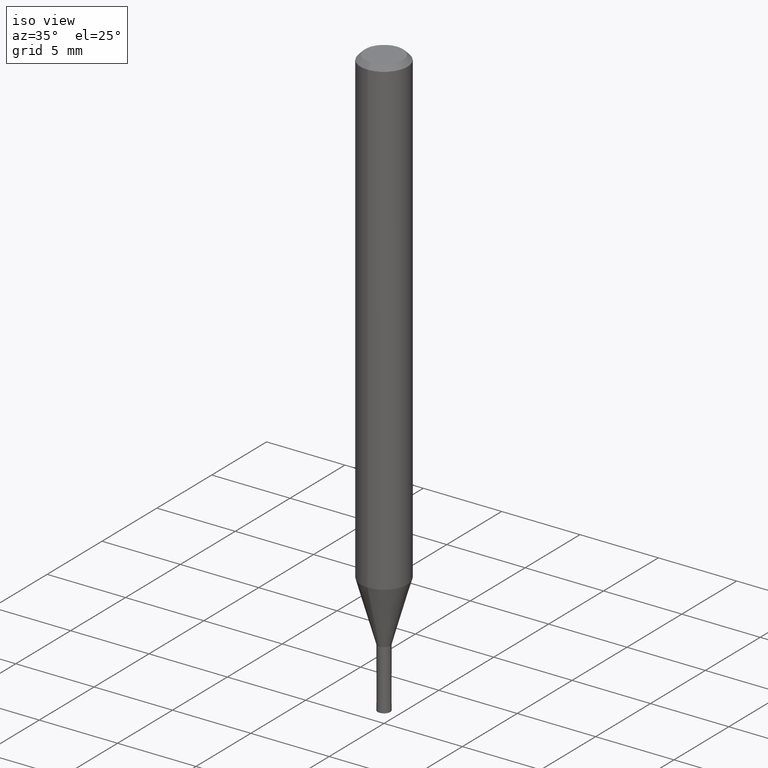
[diagram: clean part render]
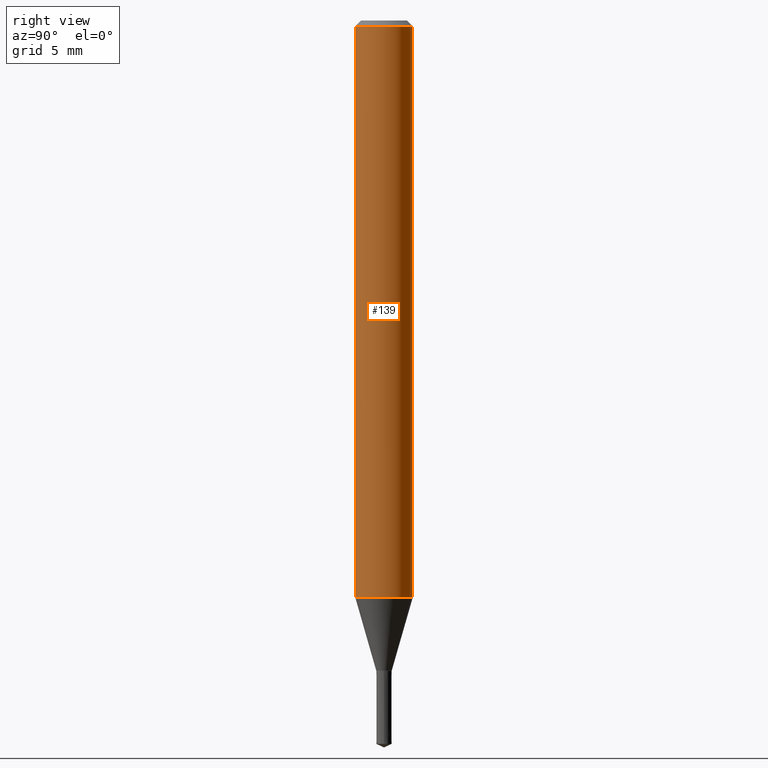
[diagram: tour spotlight — one face highlighted and labeled with its STEP entity id]
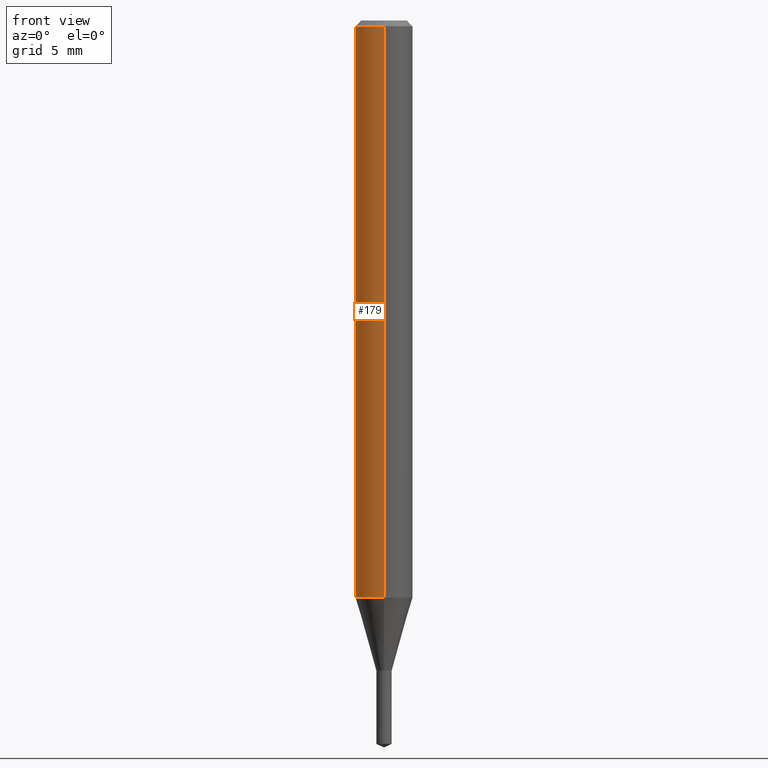
[diagram: tour spotlight — one face highlighted and labeled with its STEP entity id]
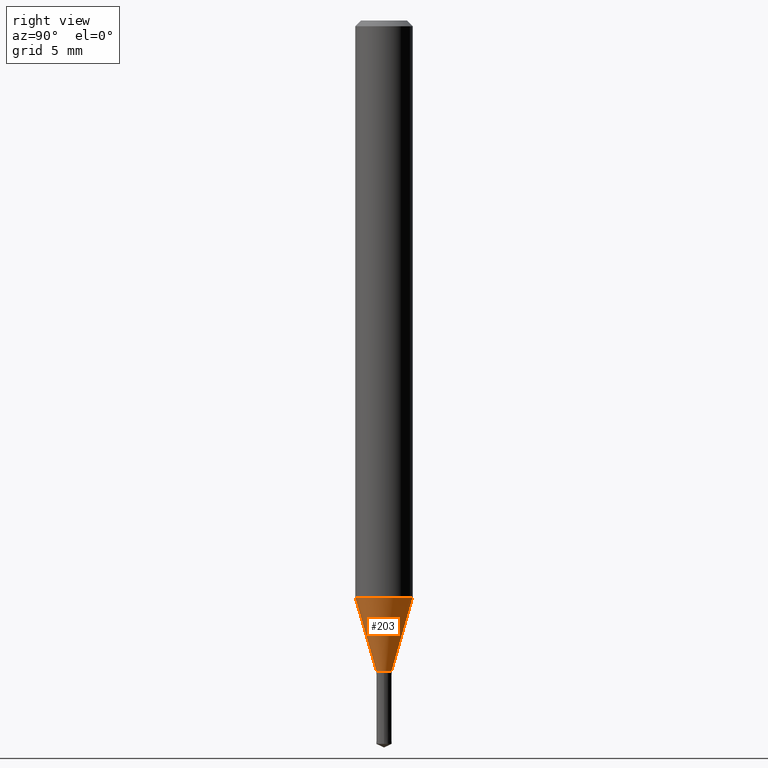
[diagram: tour spotlight — one face highlighted and labeled with its STEP entity id]
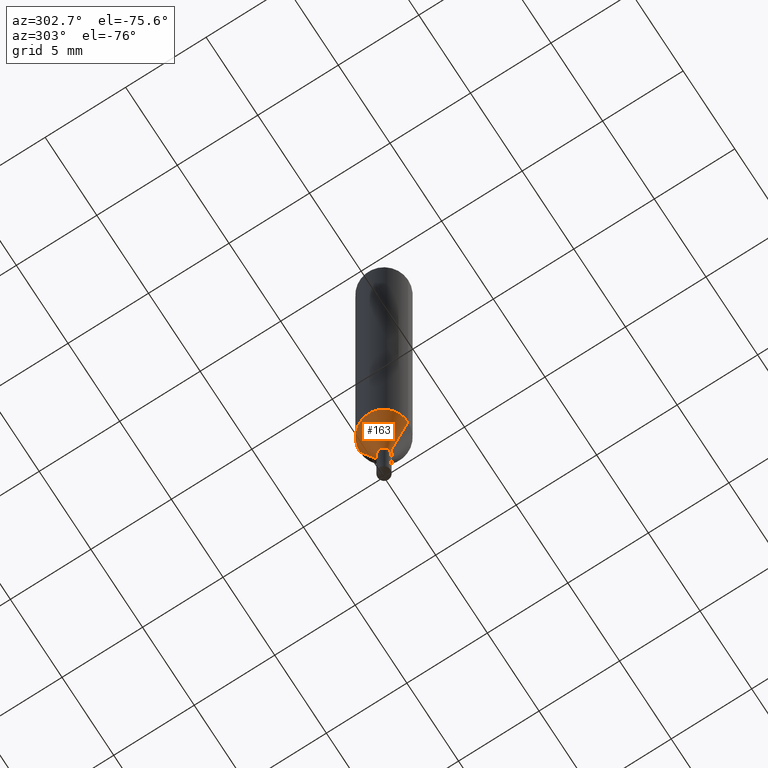
[diagram: tour spotlight — one face highlighted and labeled with its STEP entity id]
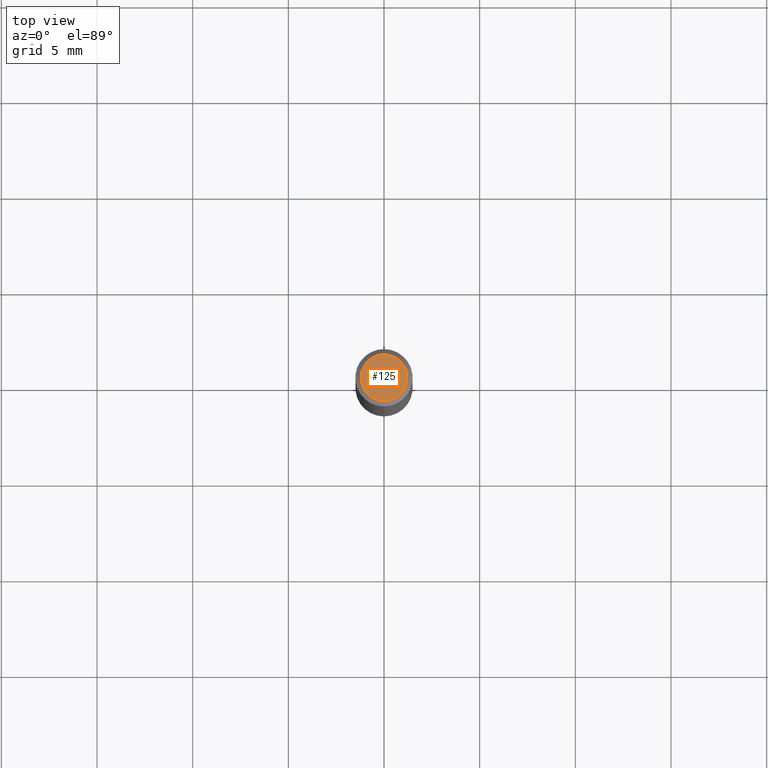
[diagram: tour spotlight — one face highlighted and labeled with its STEP entity id]
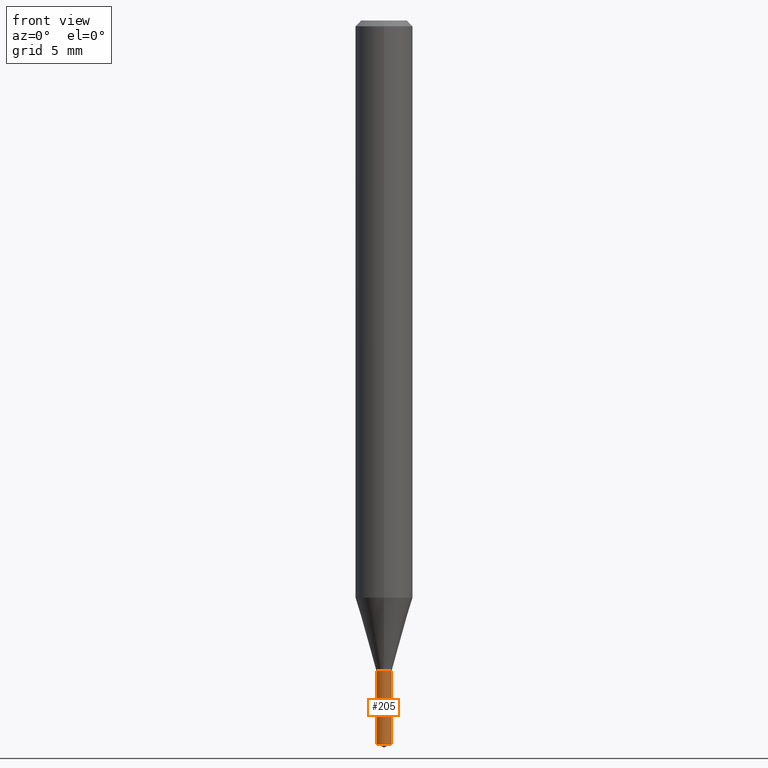
[diagram: tour spotlight — one face highlighted and labeled with its STEP entity id]
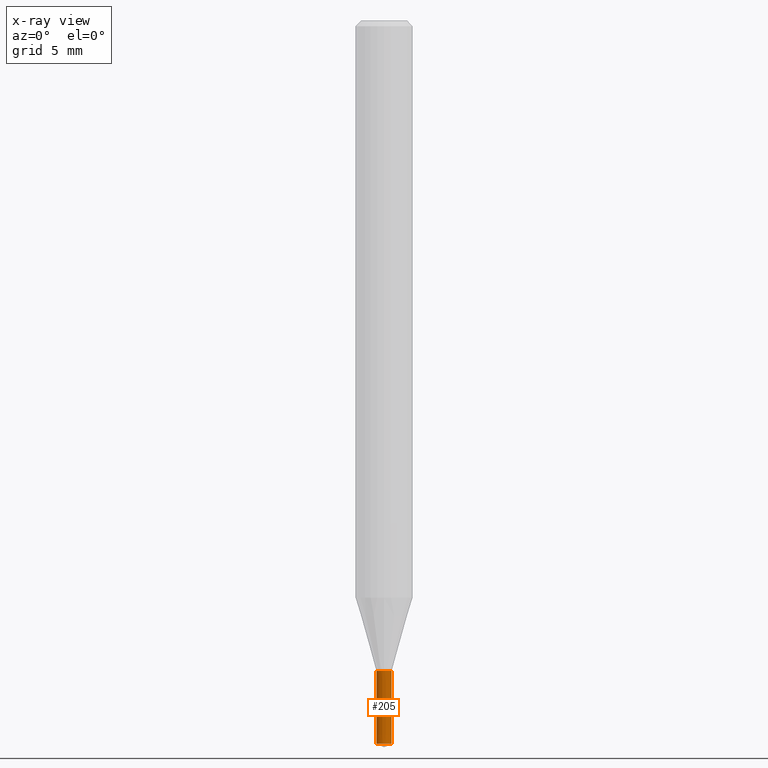
[diagram: x-ray of the same camera — body ghosted, this tour face saturated]
A machine part: a face-by-face anatomy tour. The part has 15 B-rep faces; the first image is the clean iso view, then the 6 largest visible faces are spotlighted one at a time (largest first), each with its STEP entity span.

Face 1 — right view, entity #139. In plain terms, the highlighted cylindrical surface (edge-blend (fillet) strip) has radius 1.5 mm, axis along (-0, -0, 1).
Definition (entity closure, byte-faithful):
#91=VERTEX_POINT('',#226);
#101=EDGE_CURVE('',#91,#127,#237,.T.);
#127=VERTEX_POINT('',#266);
#137=EDGE_CURVE('',#201,#91,#277,.T.);
#139=ADVANCED_FACE('',(#279),#280,.T.);
#157=EDGE_CURVE('',#167,#201,#299,.T.);
#167=VERTEX_POINT('',#311);
#199=EDGE_CURVE('',#167,#127,#347,.T.);
#201=VERTEX_POINT('',#349);
#226=CARTESIAN_POINT('',(1.83690953073357E-016,-1.5,-30.164));
#237=LINE('',#382,#383);
#266=CARTESIAN_POINT('',(1.83690953073357E-016,-1.5,-0.300000000000001));
#277=CIRCLE('',#436,1.5);
#279=FACE_OUTER_BOUND('',#438,.T.);
#280=CYLINDRICAL_SURFACE('',#439,1.5);
#299=LINE('',#464,#465);
#311=CARTESIAN_POINT('',(0.0,1.5,-0.300000000000001));
#347=CIRCLE('',#525,1.5);
#349=CARTESIAN_POINT('',(0.0,1.5,-30.164));
#382=CARTESIAN_POINT('',(1.83690953073357E-016,-1.5,-15.232));
#383=VECTOR('',#548,1.0);
#436=AXIS2_PLACEMENT_3D('',#597,#598,#599);
#438=EDGE_LOOP('',(#601,#602,#603,#604));
#439=AXIS2_PLACEMENT_3D('',#605,#606,#607);
#464=CARTESIAN_POINT('',(-1.83690953073357E-016,1.5,-15.232));
#465=VECTOR('',#621,1.0);
#525=AXIS2_PLACEMENT_3D('',#684,#685,#686);
#548=DIRECTION('',(-0.0,-0.0,1.0));
#597=CARTESIAN_POINT('',(0.0,0.0,-30.164));
#598=DIRECTION('',(0.0,0.0,-1.0));
#599=DIRECTION('',(0.0,1.0,0.0));
#601=ORIENTED_EDGE('',*,*,#157,.F.);
#602=ORIENTED_EDGE('',*,*,#199,.T.);
#603=ORIENTED_EDGE('',*,*,#101,.F.);
#604=ORIENTED_EDGE('',*,*,#137,.F.);
#605=CARTESIAN_POINT('',(0.0,0.0,-15.232));
#606=DIRECTION('',(-0.0,-0.0,1.0));
#607=DIRECTION('',(0.0,1.0,0.0));
#621=DIRECTION('',(0.0,0.0,-1.0));
#684=CARTESIAN_POINT('',(0.0,0.0,-0.300000000000001));
#685=DIRECTION('',(0.0,0.0,-1.0));
#686=DIRECTION('',(0.0,1.0,0.0));

Face 2 — front view, entity #179. In plain terms, the highlighted cylindrical surface (edge-blend (fillet) strip) has radius 1.5 mm, axis along (-0, -0, 1).
Definition (entity closure, byte-faithful):
#91=VERTEX_POINT('',#226);
#101=EDGE_CURVE('',#91,#127,#237,.T.);
#109=EDGE_CURVE('',#91,#201,#245,.T.);
#127=VERTEX_POINT('',#266);
#157=EDGE_CURVE('',#167,#201,#299,.T.);
#167=VERTEX_POINT('',#311);
#177=EDGE_CURVE('',#127,#167,#322,.T.);
#179=ADVANCED_FACE('',(#324),#325,.T.);
#201=VERTEX_POINT('',#349);
#226=CARTESIAN_POINT('',(1.83690953073357E-016,-1.5,-30.164));
#237=LINE('',#382,#383);
#245=CIRCLE('',#394,1.5);
#266=CARTESIAN_POINT('',(1.83690953073357E-016,-1.5,-0.300000000000001));
#299=LINE('',#464,#465);
#311=CARTESIAN_POINT('',(0.0,1.5,-0.300000000000001));
#322=CIRCLE('',#491,1.5);
#324=FACE_OUTER_BOUND('',#493,.T.);
#325=CYLINDRICAL_SURFACE('',#494,1.5);
#349=CARTESIAN_POINT('',(0.0,1.5,-30.164));
#382=CARTESIAN_POINT('',(1.83690953073357E-016,-1.5,-15.232));
#383=VECTOR('',#548,1.0);
#394=AXIS2_PLACEMENT_3D('',#555,#556,#557);
#464=CARTESIAN_POINT('',(-1.83690953073357E-016,1.5,-15.232));
#465=VECTOR('',#621,1.0);
#491=AXIS2_PLACEMENT_3D('',#649,#650,#651);
#493=EDGE_LOOP('',(#653,#654,#655,#656));
#494=AXIS2_PLACEMENT_3D('',#657,#658,#659);
#548=DIRECTION('',(-0.0,-0.0,1.0));
#555=CARTESIAN_POINT('',(0.0,0.0,-30.164));
#556=DIRECTION('',(0.0,0.0,-1.0));
#557=DIRECTION('',(0.0,1.0,0.0));
#621=DIRECTION('',(0.0,0.0,-1.0));
#649=CARTESIAN_POINT('',(0.0,0.0,-0.300000000000001));
#650=DIRECTION('',(0.0,0.0,-1.0));
#651=DIRECTION('',(0.0,1.0,0.0));
#653=ORIENTED_EDGE('',*,*,#157,.T.);
#654=ORIENTED_EDGE('',*,*,#109,.F.);
#655=ORIENTED_EDGE('',*,*,#101,.T.);
#656=ORIENTED_EDGE('',*,*,#177,.T.);
#657=CARTESIAN_POINT('',(0.0,0.0,-15.232));
#658=DIRECTION('',(-0.0,-0.0,1.0));
#659=DIRECTION('',(0.0,1.0,0.0));

Face 3 — right view, entity #203. In plain terms, the highlighted conical surface has half-angle 16.004 deg.
Definition (entity closure, byte-faithful):
#91=VERTEX_POINT('',#226);
#105=VERTEX_POINT('',#241);
#107=EDGE_CURVE('',#105,#171,#243,.T.);
#137=EDGE_CURVE('',#201,#91,#277,.T.);
#141=EDGE_CURVE('',#201,#105,#282,.T.);
#171=VERTEX_POINT('',#316);
#187=EDGE_CURVE('',#171,#91,#333,.T.);
#201=VERTEX_POINT('',#349);
#203=ADVANCED_FACE('',(#351),#352,.T.);
#226=CARTESIAN_POINT('',(1.83690953073357E-016,-1.5,-30.164));
#241=CARTESIAN_POINT('',(0.0,0.4,-33.9991339745962));
#243=CIRCLE('',#391,0.4);
#277=CIRCLE('',#436,1.5);
#282=LINE('',#442,#443);
#316=CARTESIAN_POINT('',(4.89842541528951E-017,-0.4,-33.9991339745962));
#333=LINE('',#506,#507);
#349=CARTESIAN_POINT('',(0.0,1.5,-30.164));
#351=FACE_OUTER_BOUND('',#529,.T.);
#352=CONICAL_SURFACE('',#530,0.95,0.279323280297878);
#391=AXIS2_PLACEMENT_3D('',#552,#553,#554);
#436=AXIS2_PLACEMENT_3D('',#597,#598,#599);
#442=CARTESIAN_POINT('',(-1.16337603613126E-016,0.95,-32.0815669872981));
#443=VECTOR('',#608,1.0);
#506=CARTESIAN_POINT('',(1.16337603613126E-016,-0.95,-32.0815669872981));
#507=VECTOR('',#664,1.0);
#529=EDGE_LOOP('',(#688,#689,#690,#691));
#530=AXIS2_PLACEMENT_3D('',#692,#693,#694);
#552=CARTESIAN_POINT('',(0.0,0.0,-33.9991339745962));
#553=DIRECTION('',(0.0,0.0,-1.0));
#554=DIRECTION('',(0.0,1.0,0.0));
#597=CARTESIAN_POINT('',(0.0,0.0,-30.164));
#598=DIRECTION('',(0.0,0.0,-1.0));
#599=DIRECTION('',(0.0,1.0,0.0));
#608=DIRECTION('',(3.37630364420972E-017,-0.275705220185345,-0.961242233551226));
#664=DIRECTION('',(3.37630364420972E-017,-0.275705220185345,0.961242233551226));
#688=ORIENTED_EDGE('',*,*,#141,.F.);
#689=ORIENTED_EDGE('',*,*,#137,.T.);
#690=ORIENTED_EDGE('',*,*,#187,.F.);
#691=ORIENTED_EDGE('',*,*,#107,.F.);
#692=CARTESIAN_POINT('',(0.0,0.0,-32.0815669872981));
#693=DIRECTION('',(-0.0,-0.0,1.0));
#694=DIRECTION('',(0.0,1.0,0.0));

Face 4 — auxiliary view, entity #163. In plain terms, the highlighted conical surface has half-angle 16.004 deg.
Definition (entity closure, byte-faithful):
#91=VERTEX_POINT('',#226);
#105=VERTEX_POINT('',#241);
#109=EDGE_CURVE('',#91,#201,#245,.T.);
#141=EDGE_CURVE('',#201,#105,#282,.T.);
#163=ADVANCED_FACE('',(#306),#307,.T.);
#171=VERTEX_POINT('',#316);
#173=EDGE_CURVE('',#171,#105,#318,.T.);
#187=EDGE_CURVE('',#171,#91,#333,.T.);
#201=VERTEX_POINT('',#349);
#226=CARTESIAN_POINT('',(1.83690953073357E-016,-1.5,-30.164));
#241=CARTESIAN_POINT('',(0.0,0.4,-33.9991339745962));
#245=CIRCLE('',#394,1.5);
#282=LINE('',#442,#443);
#306=FACE_OUTER_BOUND('',#471,.T.);
#307=CONICAL_SURFACE('',#472,0.95,0.279323280297878);
#316=CARTESIAN_POINT('',(4.89842541528951E-017,-0.4,-33.9991339745962));
#318=CIRCLE('',#486,0.4);
#333=LINE('',#506,#507);
#349=CARTESIAN_POINT('',(0.0,1.5,-30.164));
#394=AXIS2_PLACEMENT_3D('',#555,#556,#557);
#442=CARTESIAN_POINT('',(-1.16337603613126E-016,0.95,-32.0815669872981));
#443=VECTOR('',#608,1.0);
#471=EDGE_LOOP('',(#630,#631,#632,#633));
#472=AXIS2_PLACEMENT_3D('',#634,#635,#636);
#486=AXIS2_PLACEMENT_3D('',#646,#647,#648);
#506=CARTESIAN_POINT('',(1.16337603613126E-016,-0.95,-32.0815669872981));
#507=VECTOR('',#664,1.0);
#555=CARTESIAN_POINT('',(0.0,0.0,-30.164));
#556=DIRECTION('',(0.0,0.0,-1.0));
#557=DIRECTION('',(0.0,1.0,0.0));
#608=DIRECTION('',(3.37630364420972E-017,-0.275705220185345,-0.961242233551226));
#630=ORIENTED_EDGE('',*,*,#141,.T.);
#631=ORIENTED_EDGE('',*,*,#173,.F.);
#632=ORIENTED_EDGE('',*,*,#187,.T.);
#633=ORIENTED_EDGE('',*,*,#109,.T.);
#634=CARTESIAN_POINT('',(0.0,0.0,-32.0815669872981));
#635=DIRECTION('',(-0.0,-0.0,1.0));
#636=DIRECTION('',(0.0,1.0,0.0));
#646=CARTESIAN_POINT('',(0.0,0.0,-33.9991339745962));
#647=DIRECTION('',(0.0,0.0,-1.0));
#648=DIRECTION('',(0.0,1.0,0.0));
#664=DIRECTION('',(3.37630364420972E-017,-0.275705220185345,0.961242233551226));

Face 5 — top view, entity #125. In plain terms, the highlighted planar face has unit normal (-0, 0, 1).
Definition (entity closure, byte-faithful):
#119=VERTEX_POINT('',#256);
#123=EDGE_CURVE('',#119,#181,#261,.T.);
#125=ADVANCED_FACE('',(#263),#264,.T.);
#181=VERTEX_POINT('',#327);
#183=EDGE_CURVE('',#181,#119,#329,.T.);
#256=CARTESIAN_POINT('',(1.46952762458685E-016,-1.2,0.0));
#261=CIRCLE('',#415,1.2);
#263=FACE_OUTER_BOUND('',#417,.T.);
#264=PLANE('',#418);
#327=CARTESIAN_POINT('',(0.0,1.2,0.0));
#329=CIRCLE('',#499,1.2);
#415=AXIS2_PLACEMENT_3D('',#573,#574,#575);
#417=EDGE_LOOP('',(#577,#578));
#418=AXIS2_PLACEMENT_3D('',#579,#580,#581);
#499=AXIS2_PLACEMENT_3D('',#660,#661,#662);
#573=CARTESIAN_POINT('',(0.0,0.0,0.0));
#574=DIRECTION('',(0.0,0.0,-1.0));
#575=DIRECTION('',(0.0,1.0,0.0));
#577=ORIENTED_EDGE('',*,*,#183,.F.);
#578=ORIENTED_EDGE('',*,*,#123,.F.);
#579=CARTESIAN_POINT('',(0.0,0.6,0.0));
#580=DIRECTION('',(-0.0,0.0,1.0));
#581=DIRECTION('',(0.0,-1.0,0.0));
#660=CARTESIAN_POINT('',(0.0,0.0,0.0));
#661=DIRECTION('',(0.0,0.0,-1.0));
#662=DIRECTION('',(0.0,1.0,0.0));

Face 6 — front view, entity #205. An x-ray twin of the same camera follows (body ghosted, this face saturated) — the face is partly hidden behind the body. In plain terms, the highlighted conical surface has half-angle 0.015 deg.
Definition (entity closure, byte-faithful):
#93=EDGE_CURVE('',#143,#147,#228,.T.);
#115=VERTEX_POINT('',#252);
#135=EDGE_CURVE('',#175,#115,#275,.T.);
#143=VERTEX_POINT('',#284);
#147=VERTEX_POINT('',#288);
#149=EDGE_CURVE('',#147,#115,#290,.T.);
#165=EDGE_CURVE('',#175,#143,#309,.T.);
#175=VERTEX_POINT('',#320);
#205=ADVANCED_FACE('',(#354),#355,.T.);
#228=CIRCLE('',#371,0.401);
#252=CARTESIAN_POINT('',(-0.4,0.0,-37.81347694));
#275=CIRCLE('',#433,0.4);
#284=CARTESIAN_POINT('',(0.401,4.91067147882773E-017,-34.0));
#288=CARTESIAN_POINT('',(-0.401,0.0,-34.0));
#290=LINE('',#453,#454);
#309=LINE('',#475,#476);
#320=CARTESIAN_POINT('',(0.4,4.89842541528951E-017,-37.81347694));
#354=FACE_OUTER_BOUND('',#532,.T.);
#355=CONICAL_SURFACE('',#533,0.4005,0.000262227880963362);
#371=AXIS2_PLACEMENT_3D('',#535,#536,#537);
#433=AXIS2_PLACEMENT_3D('',#594,#595,#596);
#453=CARTESIAN_POINT('',(-0.4005,-4.90454844705862E-017,-35.90673847));
#454=VECTOR('',#612,1.0);
#475=CARTESIAN_POINT('',(0.4005,4.90454844705862E-017,-35.90673847));
#476=VECTOR('',#637,1.0);
#532=EDGE_LOOP('',(#696,#697,#698,#699));
#533=AXIS2_PLACEMENT_3D('',#700,#701,#702);
#535=CARTESIAN_POINT('',(0.0,0.0,-34.0));
#536=DIRECTION('',(0.0,0.0,-1.0));
#537=DIRECTION('',(-1.0,0.0,0.0));
#594=CARTESIAN_POINT('',(0.0,0.0,-37.81347694));
#595=DIRECTION('',(0.0,0.0,-1.0));
#596=DIRECTION('',(-1.0,0.0,0.0));
#612=DIRECTION('',(0.000262227877958079,3.21125925496823E-020,-0.999999965618269));
#637=DIRECTION('',(0.000262227877958079,3.21125925496823E-020,0.999999965618269));
#696=ORIENTED_EDGE('',*,*,#149,.T.);
#697=ORIENTED_EDGE('',*,*,#135,.F.);
#698=ORIENTED_EDGE('',*,*,#165,.T.);
#699=ORIENTED_EDGE('',*,*,#93,.T.);
#700=CARTESIAN_POINT('',(0.0,0.0,-35.90673847));
#701=DIRECTION('',(-0.0,-0.0,1.0));
#702=DIRECTION('',(-1.0,0.0,0.0));